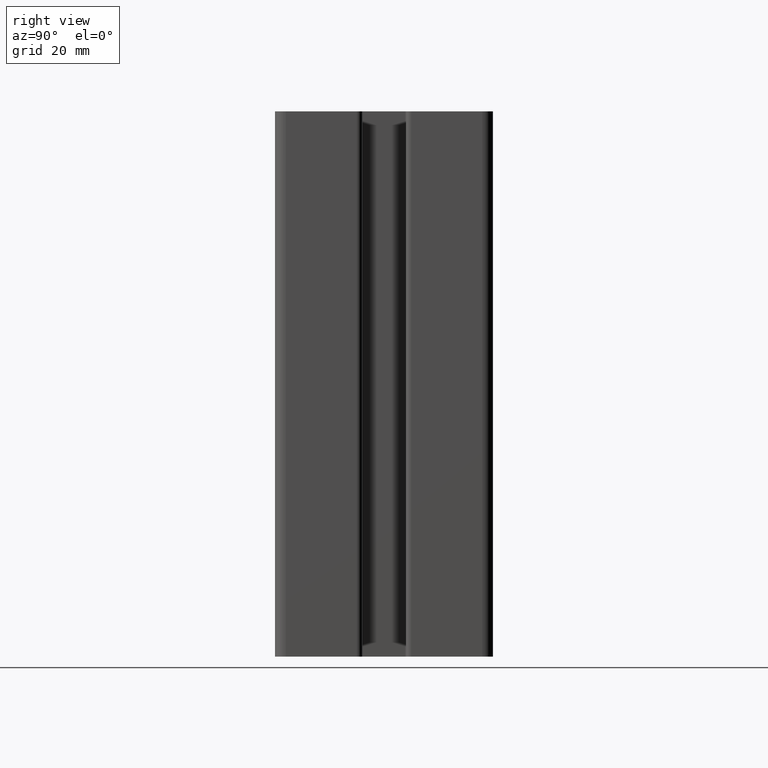
[diagram: clean part render]
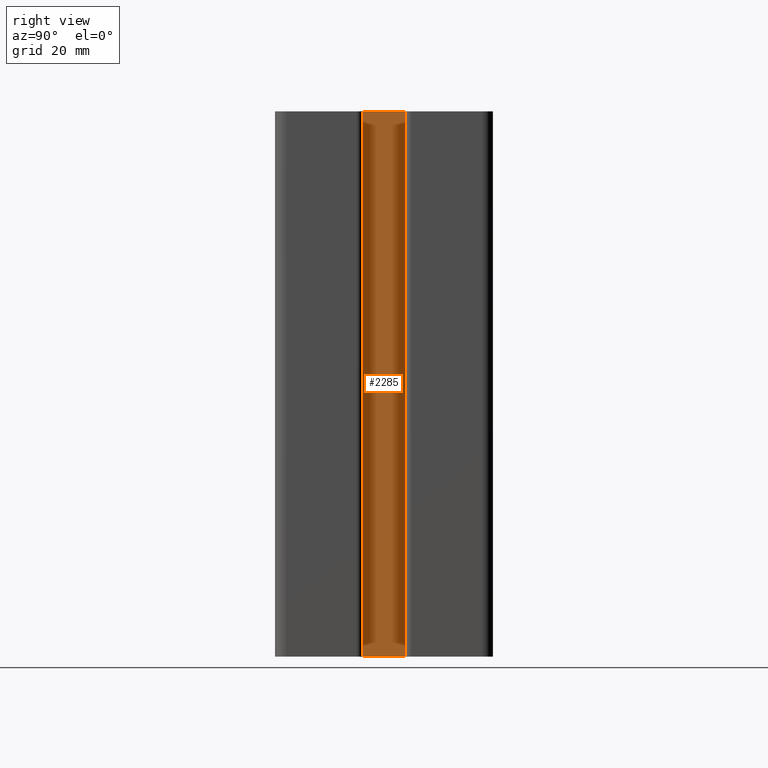
[diagram: same view with one face highlighted and labeled with its STEP entity id]
A machine part, right view. The second image highlights one B-rep face of the part: STEP entity #2285.
In plain terms, the highlighted planar face has unit normal (-1, 0, 0).
Its self-contained STEP definition (entity closure, byte-faithful):
#47=LINE('',#3452,#279);
#48=LINE('',#3455,#280);
#49=LINE('',#3457,#281);
#50=LINE('',#3458,#282);
#279=VECTOR('',#2739,100.);
#280=VECTOR('',#2742,7.68629150101523);
#281=VECTOR('',#2743,7.68629150101523);
#282=VECTOR('',#2744,100.);
#487=PLANE('',#2427);
#565=FACE_OUTER_BOUND('',#687,.T.);
#687=EDGE_LOOP('',(#1571,#1572,#1573,#1574));
#951=VERTEX_POINT('',#3448);
#952=VERTEX_POINT('',#3450);
#953=VERTEX_POINT('',#3454);
#954=VERTEX_POINT('',#3456);
#1203=EDGE_CURVE('',#952,#951,#47,.T.);
#1204=EDGE_CURVE('',#951,#953,#48,.T.);
#1205=EDGE_CURVE('',#954,#952,#49,.T.);
#1206=EDGE_CURVE('',#954,#953,#50,.T.);
#1571=ORIENTED_EDGE('',*,*,#1204,.F.);
#1572=ORIENTED_EDGE('',*,*,#1203,.F.);
#1573=ORIENTED_EDGE('',*,*,#1205,.F.);
#1574=ORIENTED_EDGE('',*,*,#1206,.T.);
#2285=ADVANCED_FACE('',(#565),#487,.F.);
#2427=AXIS2_PLACEMENT_3D('',#3453,#2740,#2741);
#2739=DIRECTION('',(0.,0.,1.));
#2740=DIRECTION('center_axis',(-1.,0.,0.));
#2741=DIRECTION('ref_axis',(0.,-1.,0.));
#2742=DIRECTION('',(0.,1.,0.));
#2743=DIRECTION('',(0.,-1.,0.));
#2744=DIRECTION('',(0.,0.,1.));
#3448=CARTESIAN_POINT('',(27.5,-3.84314575050762,100.));
#3450=CARTESIAN_POINT('',(27.5,-3.84314575050762,0.));
#3452=CARTESIAN_POINT('',(27.5,-3.84314575050762,0.));
#3453=CARTESIAN_POINT('Origin',(27.5,3.84314575050762,0.));
#3454=CARTESIAN_POINT('',(27.5,3.84314575050762,100.));
#3455=CARTESIAN_POINT('',(27.5,1.92157287525381,100.));
#3456=CARTESIAN_POINT('',(27.5,3.84314575050762,0.));
#3457=CARTESIAN_POINT('',(27.5,1.92157287525381,0.));
#3458=CARTESIAN_POINT('',(27.5,3.84314575050762,0.));